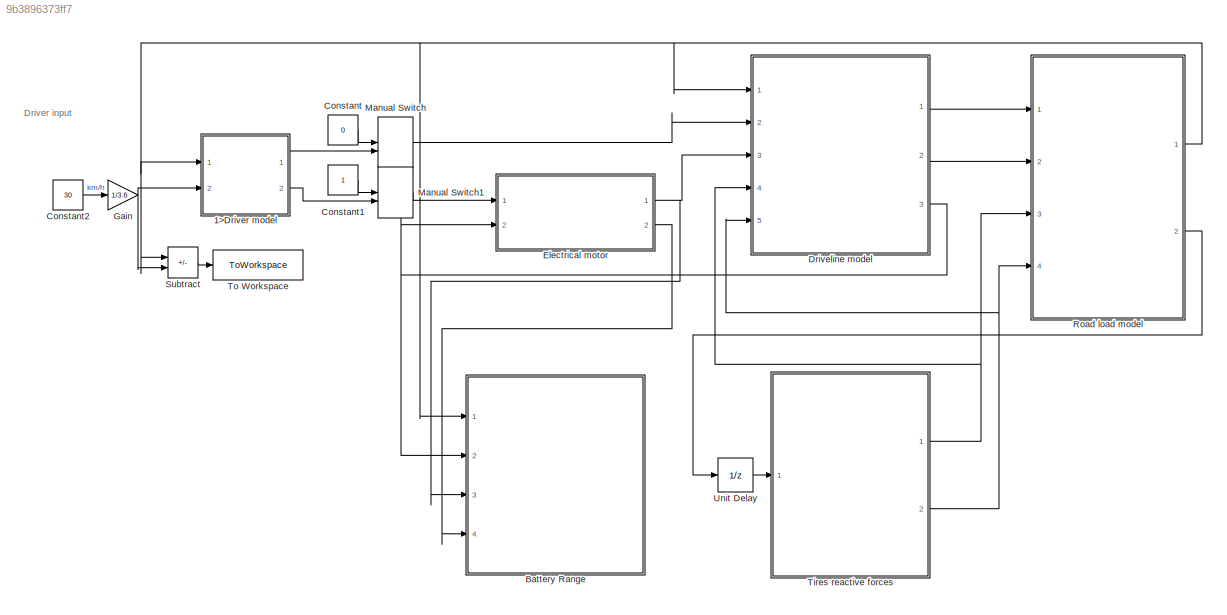
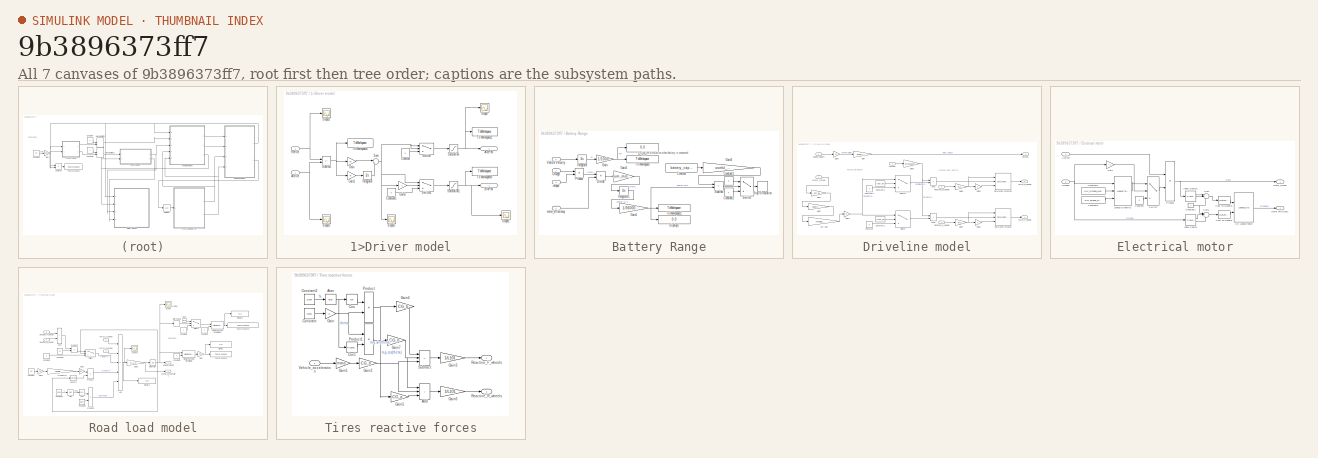
[diagram: thumbnail index - all 7 canvases of the model, root first then tree order]
MODEL slx_9b3896373ff7
KIND model
CONFIG AbsTol = auto
CONFIG EnableMultiTasking = off
CONFIG FixedStep = time_step
CONFIG MaxStep = auto
CONFIG MinStep = auto
CONFIG RelTol = 1e-3
CONFIG SampleTimeConstraint = Unconstrained
CONFIG Solver = FixedStepAuto
CONFIG SolverName = FixedStepAuto
CONFIG StartTime = 0
CONFIG StopTime = 1000
BLOCK [SubSystem] 1>Driver model
  Ports = [2, 2]
  RequestExecContextInheritance = off
BLOCK [Outport] 1>Driver model/AccPed
  Port = 2
BLOCK [Inport] 1>Driver model/ActVel
  Unit = m/s
BLOCK [Outport] 1>Driver model/BrkPed
BLOCK [Constant] 1>Driver model/Constant
  Value = 0
BLOCK [Constant] 1>Driver model/Constant1
  Value = 0
BLOCK [Gain] 1>Driver model/Gain
  Gain = Kp
BLOCK [Gain] 1>Driver model/Gain1
  Gain = Ki
BLOCK [Gain] 1>Driver model/Gain2
  Gain = -1
BLOCK [Integrator] 1>Driver model/Integrator
  Ports = [1, 1]
BLOCK [Inport] 1>Driver model/RefVel
  Port = 2
  Unit = m/s
BLOCK [Saturate] 1>Driver model/Saturation
  LowerLimit = 0
  UpperLimit = 1
BLOCK [Saturate] 1>Driver model/Saturation1
  LowerLimit = -1
  UpperLimit = 0
BLOCK [Scope] 1>Driver model/Scope
  Floating = off
  NumInputPorts = 1
  Ports = [1]
  ScopeSpecificationString = Simulink.scopes.TimeScopeBlockCfg('CurrentConfiguration', extmgr.ConfigurationSet(extmgr.Configuration('Core','General UI',true),extmgr.Configuration('Core','Source UI',true),extmgr.Configuration('Sources','WiredSimulink',true),extmgr.Configuration('Visuals','Time Domain',true,'SerializedDisplays',{struct('MinYLimReal','-0.0206','MaxYLimReal','0.1854','YLabelReal','','MinYLimMag','0.00000','MaxYLi...<+1355ch>
BLOCK [Scope] 1>Driver model/Scope1
  Floating = off
  NumInputPorts = 1
  Ports = [1]
  ScopeSpecificationString = Simulink.scopes.TimeScopeBlockCfg('CurrentConfiguration', extmgr.ConfigurationSet(extmgr.Configuration('Core','General UI',true),extmgr.Configuration('Core','Source UI',true),extmgr.Configuration('Sources','WiredSimulink',true,'DataLoggingVariableName','ScopeData1'),extmgr.Configuration('Visuals','Time Domain',true,'SerializedDisplays',{struct('MinYLimReal','-0.33615','MaxYLimReal','0.03735','YLab...<+1370ch>
BLOCK [Scope] 1>Driver model/Scope2
  Floating = off
  NumInputPorts = 1
  Ports = [1]
  ScopeSpecificationString = Simulink.scopes.TimeScopeBlockCfg('CurrentConfiguration', extmgr.ConfigurationSet(extmgr.Configuration('Core','General UI',true),extmgr.Configuration('Core','Source UI',true),extmgr.Configuration('Sources','WiredSimulink',true,'DataLoggingVariableName','ScopeData1'),extmgr.Configuration('Visuals','Time Domain',true,'SerializedDisplays',{struct('MinYLimReal','-4.46181','MaxYLimReal','40.15625','YLa...<+1404ch>
BLOCK [Scope] 1>Driver model/Scope3
  Floating = off
  NumInputPorts = 1
  Ports = [1]
  ScopeSpecificationString = Simulink.scopes.TimeScopeBlockCfg('CurrentConfiguration', extmgr.ConfigurationSet(extmgr.Configuration('Core','General UI',true),extmgr.Configuration('Core','Source UI',true),extmgr.Configuration('Sources','WiredSimulink',true,'DataLoggingVariableName','ScopeData2'),extmgr.Configuration('Visuals','Time Domain',true,'SerializedDisplays',{struct('MinYLimReal','-4.6429','MaxYLimReal','40.20167','YLab...<+1400ch>
BLOCK [Scope] 1>Driver model/Scope5
  Floating = off
  NumInputPorts = 1
  Ports = [1]
  ScopeSpecificationString = Simulink.scopes.TimeScopeBlockCfg('CurrentConfiguration', extmgr.ConfigurationSet(extmgr.Configuration('Core','General UI',true),extmgr.Configuration('Core','Source UI',true),extmgr.Configuration('Sources','WiredSimulink',true,'DataLoggingVariableName','ScopeData4'),extmgr.Configuration('Visuals','Time Domain',true,'SerializedDisplays',{struct('MinYLimReal','-0.35675','MaxYLimReal','0.22275','YLab...<+1391ch>
BLOCK [Sum] 1>Driver model/Subtract
  IconShape = rectangular
  Inputs = +-
  Ports = [2, 1]
BLOCK [Sum] 1>Driver model/Sum
  Inputs = |++
  Ports = [2, 1]
BLOCK [Switch] 1>Driver model/Switch
  InputSameDT = off
  SaturateOnIntegerOverflow = off
BLOCK [Switch] 1>Driver model/Switch1
  Criteria = u2 > Threshold
  InputSameDT = off
  SaturateOnIntegerOverflow = off
BLOCK [ToWorkspace] 1>Driver model/To Workspace1
  FixptAsFi = on
  MaxDataPoints = inf
  Ports = [1]
  SampleTime = -1
  SaveFormat = Timeseries
  VariableName = AccPed
BLOCK [ToWorkspace] 1>Driver model/To Workspace2
  FixptAsFi = on
  MaxDataPoints = inf
  Ports = [1]
  SampleTime = -1
  SaveFormat = Timeseries
  VariableName = error
BLOCK [ToWorkspace] 1>Driver model/To Workspace3
  FixptAsFi = on
  MaxDataPoints = inf
  Ports = [1]
  SampleTime = -1
  SaveFormat = Timeseries
  VariableName = BrkPed
BLOCK [SubSystem] Battery Range
  Ports = [4]
  RequestExecContextInheritance = off
BLOCK [Constant] Battery Range/Constant
  Value = battery_capacity/1000
BLOCK [Constant] Battery Range/Constant1
  Value = 0
BLOCK [Constant] Battery Range/Constant2
BLOCK [Display] Battery Range/Display
  Decimation = 1
  Ports = [1]
BLOCK [Display] Battery Range/Display1
  Decimation = 1
  Ports = [1]
BLOCK [Product] Battery Range/Divide
  Inputs = */
  Ports = [2, 1]
BLOCK [Gain] Battery Range/Gain
  Gain = 1/1000
BLOCK [Gain] Battery Range/Gain1
  Gain = 1/3600000
BLOCK [Gain] Battery Range/Gain2
  Gain = num_motor
BLOCK [Gain] Battery Range/Gain3
  Gain = useful_battery_capacity
BLOCK [Integrator] Battery Range/Integrator
  Ports = [1, 1]
BLOCK [Integrator] Battery Range/Integrator1
  Ports = [1, 1]
BLOCK [Inport] Battery Range/Omega
  Port = 2
BLOCK [Product] Battery Range/Product
  Ports = [2, 1]
BLOCK [Stop] Battery Range/Stop Simulation
BLOCK [Sum] Battery Range/Subtract
  IconShape = rectangular
  Inputs = +-
  Ports = [2, 1]
BLOCK [Switch] Battery Range/Switch
  Criteria = u2 > Threshold
  InputSameDT = off
  SaturateOnIntegerOverflow = off
BLOCK [ToWorkspace] Battery Range/To Workspace
  FixptAsFi = on
  MaxDataPoints = inf
  Ports = [1]
  SampleTime = -1
  SaveFormat = Timeseries
  VariableName = range_km
BLOCK [ToWorkspace] Battery Range/To Workspace1
  FixptAsFi = on
  MaxDataPoints = inf
  Ports = [1]
  SampleTime = -1
  SaveFormat = Timeseries
  VariableName = energy_consumed_kWh
BLOCK [Inport] Battery Range/Vehicle Velocity
BLOCK [Inport] Battery Range/motor_effieciency
  Port = 4
BLOCK [Inport] Battery Range/torque
  Port = 3
BLOCK [Constant] Constant
  Value = 0
BLOCK [Constant] Constant1
BLOCK [Constant] Constant2
  Value = 30
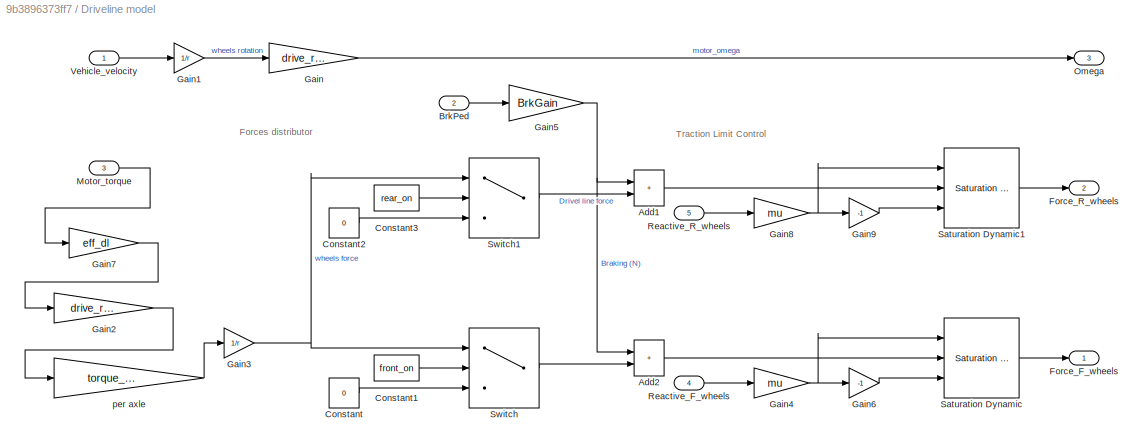
BLOCK [SubSystem] Driveline model
  Ports = [5, 3]
  RequestExecContextInheritance = off
BLOCK [Sum] Driveline model/Add1
  IconShape = rectangular
  Ports = [2, 1]
BLOCK [Sum] Driveline model/Add2
  IconShape = rectangular
  Ports = [2, 1]
BLOCK [Inport] Driveline model/BrkPed
  Port = 2
BLOCK [Constant] Driveline model/Constant
  Value = 0
BLOCK [Constant] Driveline model/Constant1
  Value = front_on
BLOCK [Constant] Driveline model/Constant2
  Value = 0
BLOCK [Constant] Driveline model/Constant3
  Value = rear_on
BLOCK [Outport] Driveline model/Force_F_wheels
  Unit = N
BLOCK [Outport] Driveline model/Force_R_wheels
  Port = 2
  Unit = N
BLOCK [Gain] Driveline model/Gain
  Gain = drive_ratio
BLOCK [Gain] Driveline model/Gain1
  Gain = 1/r
BLOCK [Gain] Driveline model/Gain2
  Gain = drive_ratio
BLOCK [Gain] Driveline model/Gain3
  Gain = 1/r
BLOCK [Gain] Driveline model/Gain4
  Gain = mu
BLOCK [Gain] Driveline model/Gain5
  Gain = BrkGain
BLOCK [Gain] Driveline model/Gain6
  Gain = -1
BLOCK [Gain] Driveline model/Gain7
  Gain = eff_dl
BLOCK [Gain] Driveline model/Gain8
  Gain = mu
BLOCK [Gain] Driveline model/Gain9
  Gain = -1
BLOCK [Inport] Driveline model/Motor_torque
  Port = 3
  Unit = N*m
BLOCK [Outport] Driveline model/Omega
  NameLocation = left
  Port = 3
  Unit = rad/s
BLOCK [Inport] Driveline model/Reactive_F_wheels
  Port = 4
  Unit = N
BLOCK [Inport] Driveline model/Reactive_R_wheels
  Port = 5
  Unit = N
BLOCK [Reference] Driveline model/Saturation Dynamic  REF=simulink/Discontinuities/Saturation
Dynamic
  Ports = [3, 1]
  SourceBlock = simulink/Discontinuities/Saturation\nDynamic
  SourceProductBaseCode = SL
  SourceType = Saturation Dynamic
BLOCK [Reference] Driveline model/Saturation Dynamic1  REF=simulink/Discontinuities/Saturation
Dynamic
  Ports = [3, 1]
  SourceBlock = simulink/Discontinuities/Saturation\nDynamic
  SourceProductBaseCode = SL
  SourceType = Saturation Dynamic
BLOCK [Switch] Driveline model/Switch
  Criteria = u2 ~= 0
  InputSameDT = off
  SaturateOnIntegerOverflow = off
BLOCK [Switch] Driveline model/Switch1
  Criteria = u2 ~= 0
  InputSameDT = off
  SaturateOnIntegerOverflow = off
BLOCK [Inport] Driveline model/Vehicle_velocity
  Unit = m/s
BLOCK [Gain] Driveline model/per axle
  Gain = torque_multi_factor
BLOCK [SubSystem] Electrical motor
  Ports = [2, 2]
  RequestExecContextInheritance = off
BLOCK [Lookup_n-D] Electrical motor/2-D Lookup Table
  BreakpointsForDimension1 = [1:torque_BP]
  BreakpointsForDimension2 = [1:omega_BP]
  BreakpointsSpecification = Even spacing
  ExtrapMethod = Clip
  InternalRulePriority = Speed
  Ports = [2, 1]
  RndMeth = Simplest
  Table = EM_Efficiency
  UseLastTableValue = on
BLOCK [Inport] Electrical motor/AccPed
BLOCK [DataTypeConversion] Electrical motor/Cast To Double
  OutDataTypeStr = double
  RndMeth = Floor
  SaturateOnIntegerOverflow = off
BLOCK [DataTypeConversion] Electrical motor/Cast To Double1
  OutDataTypeStr = double
  RndMeth = Floor
  SaturateOnIntegerOverflow = off
BLOCK [Constant] Electrical motor/Constant
  Value = 0
BLOCK [Constant] Electrical motor/Constant1
BLOCK [Constant] Electrical motor/Constant2
  Value = EM_Omega_Max
BLOCK [Constant] Electrical motor/Constant3
  Value = EM_Torque_Max
BLOCK [Gain] Electrical motor/Gain
  Gain = -1
BLOCK [PreLookup] Electrical motor/Index Search
  BreakpointDataTypeStr = double
  BreakpointsData = EM_Omega_Map
  IndexDataTypeStr = int8
  IndexSearchMethod = Linear search
  InputPortMap = u0
  Ports = [1, 2]
  RndMeth = Nearest
BLOCK [PreLookup] Electrical motor/Index Search1
  BreakpointDataTypeStr = double
  BreakpointsData = EM_Torque_Map
  IndexDataTypeStr = int8
  IndexSearchMethod = Linear search
  InputPortMap = u0
  Ports = [1, 2]
BLOCK [Reference] Electrical motor/Lookup Dynamics  REF=simulink/Lookup
Tables/Lookup
Table
Dynamic
  Ports = [3, 1]
  SourceBlock = simulink/Lookup\nTables/Lookup\nTable\nDynamic
  SourceProductBaseCode = SL
  SourceType = Lookup Table Dynamic
BLOCK [Inport] Electrical motor/Omega
  Port = 2
BLOCK [Product] Electrical motor/Product
  Ports = [2, 1]
BLOCK [Sum] Electrical motor/Sum
  Inputs = |+++
  Ports = [3, 1]
BLOCK [Sum] Electrical motor/Sum1
  Inputs = |+++
  Ports = [3, 1]
BLOCK [Switch] Electrical motor/Switch
  InputSameDT = off
  SaturateOnIntegerOverflow = off
  Threshold = -omega_max
BLOCK [Outport] Electrical motor/motor efficiency
  Port = 2
  Unit = N*m
BLOCK [Outport] Electrical motor/motor_torque
  Unit = N*m
BLOCK [Gain] Gain
  Gain = 1/3.6
BLOCK [ManualSwitch] Manual Switch
  CurrentSetting = 0
BLOCK [ManualSwitch] Manual Switch1
  CurrentSetting = 0
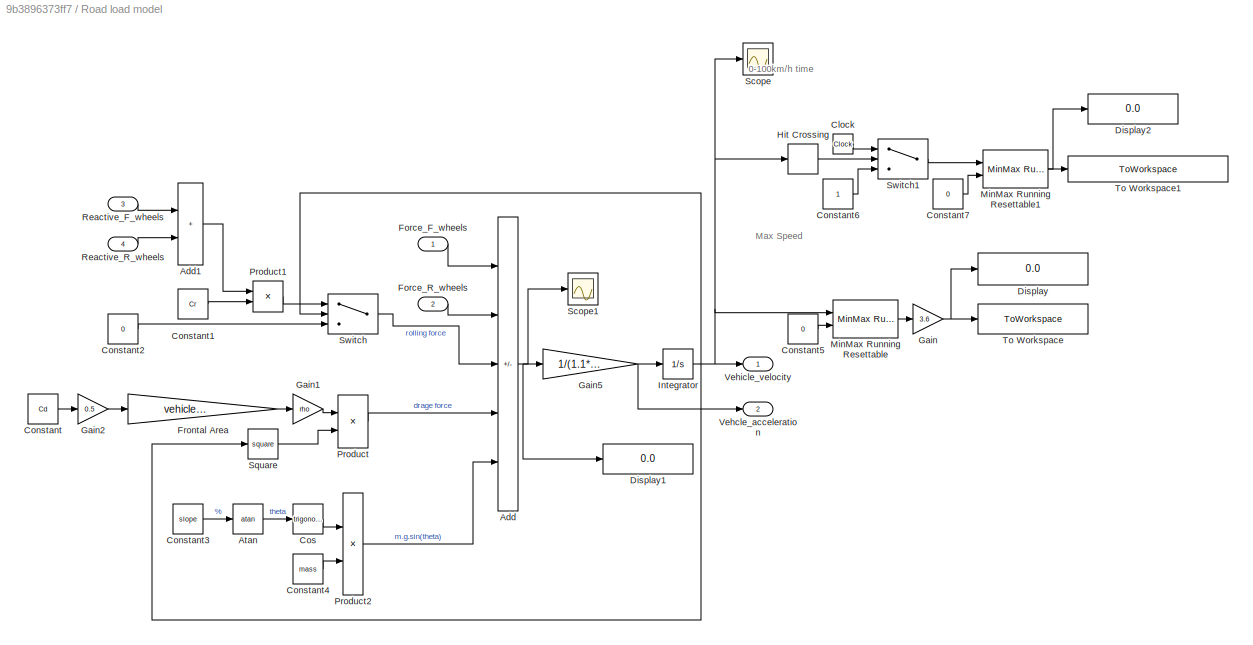
BLOCK [SubSystem] Road load model
  Ports = [4, 2]
  RequestExecContextInheritance = off
BLOCK [Sum] Road load model/Add
  IconShape = rectangular
  Inputs = ++---
  Ports = [5, 1]
BLOCK [Sum] Road load model/Add1
  IconShape = rectangular
  Ports = [2, 1]
BLOCK [Trigonometry] Road load model/Atan
  Operator = atan
  Ports = [1, 1]
BLOCK [Clock] Road load model/Clock
BLOCK [Constant] Road load model/Constant
  Value = Cd
BLOCK [Constant] Road load model/Constant1
  Value = Cr
BLOCK [Constant] Road load model/Constant2
  Value = 0
BLOCK [Constant] Road load model/Constant3
  Value = slope
BLOCK [Constant] Road load model/Constant4
  Value = mass
BLOCK [Constant] Road load model/Constant5
  Value = 0
BLOCK [Constant] Road load model/Constant6
BLOCK [Constant] Road load model/Constant7
  Value = 0
BLOCK [Trigonometry] Road load model/Cos
  Ports = [1, 1]
BLOCK [Display] Road load model/Display
  Decimation = 1
  Ports = [1]
BLOCK [Display] Road load model/Display1
  Decimation = 1
  Ports = [1]
BLOCK [Display] Road load model/Display2
  Decimation = 1
  Ports = [1]
BLOCK [Inport] Road load model/Force_F_wheels
  Unit = N
BLOCK [Inport] Road load model/Force_R_wheels
  Port = 2
  Unit = N
BLOCK [Gain] Road load model/Frontal Area
  Gain = vehicle_frontal_area
BLOCK [Gain] Road load model/Gain
  Gain = 3.6
BLOCK [Gain] Road load model/Gain1
  Gain = rho
BLOCK [Gain] Road load model/Gain2
  Gain = 0.5
BLOCK [Gain] Road load model/Gain5
  Gain = 1/(1.1*mass)
BLOCK [HitCross] Road load model/Hit Crossing
  HitCrossingDirection = rising
  HitCrossingOffset = 100/3.6
  Ports = [1, 1]
BLOCK [Integrator] Road load model/Integrator
  LimitOutput = on
  LowerSaturationLimit = 0
  Ports = [1, 1]
BLOCK [Reference] Road load model/MinMax Running Resettable  REF=simulink/Math
Operations/MinMax
Running
Resettable
  Ports = [2, 1]
  SourceBlock = simulink/Math\nOperations/MinMax\nRunning\nResettable
  SourceProductBaseCode = SL
  SourceType = MinMax Running Resettable
BLOCK [Reference] Road load model/MinMax Running Resettable1  REF=simulink/Math
Operations/MinMax
Running
Resettable
  Ports = [2, 1]
  SourceBlock = simulink/Math\nOperations/MinMax\nRunning\nResettable
  SourceProductBaseCode = SL
  SourceType = MinMax Running Resettable
BLOCK [Product] Road load model/Product
  Ports = [2, 1]
BLOCK [Product] Road load model/Product1
  Ports = [2, 1]
BLOCK [Product] Road load model/Product2
  Ports = [2, 1]
BLOCK [Inport] Road load model/Reactive_F_wheels
  Port = 3
  Unit = N
BLOCK [Inport] Road load model/Reactive_R_wheels
  Port = 4
  Unit = N
BLOCK [Scope] Road load model/Scope
  Floating = off
  NumInputPorts = 1
  Ports = [1]
  ScopeSpecificationString = Simulink.scopes.TimeScopeBlockCfg('CurrentConfiguration', extmgr.ConfigurationSet(extmgr.Configuration('Core','General UI',true),extmgr.Configuration('Core','Source UI',true),extmgr.Configuration('Sources','WiredSimulink',true,'DataLoggingVariableName','ScopeData9'),extmgr.Configuration('Visuals','Time Domain',true,'SerializedDisplays',{struct('MinYLimReal','5.51796','MaxYLimReal','11.55208','YLab...<+1438ch>
BLOCK [Scope] Road load model/Scope1
  Floating = off
  NumInputPorts = 1
  Ports = [1]
  ScopeSpecificationString = Simulink.scopes.TimeScopeBlockCfg('CurrentConfiguration', extmgr.ConfigurationSet(extmgr.Configuration('Core','General UI',true),extmgr.Configuration('Core','Source UI',true),extmgr.Configuration('Sources','WiredSimulink',true,'DataLoggingVariableName','ScopeData3'),extmgr.Configuration('Visuals','Time Domain',true,'SerializedDisplays',{struct('MinYLimReal','25.68692','MaxYLimReal','43.26504','YLa...<+1441ch>
BLOCK [Math] Road load model/Square
  Operator = square
  Ports = [1, 1]
BLOCK [Switch] Road load model/Switch
  Criteria = u2 > Threshold
  InputSameDT = off
  SaturateOnIntegerOverflow = off
BLOCK [Switch] Road load model/Switch1
  Criteria = u2 > Threshold
  InputSameDT = off
  SaturateOnIntegerOverflow = off
BLOCK [ToWorkspace] Road load model/To Workspace
  FixptAsFi = on
  MaxDataPoints = inf
  Ports = [1]
  SampleTime = -1
  SaveFormat = Timeseries
  VariableName = max_velocity_km_per_h
BLOCK [ToWorkspace] Road load model/To Workspace1
  FixptAsFi = on
  MaxDataPoints = inf
  Ports = [1]
  SampleTime = -1
  SaveFormat = Timeseries
  VariableName = acceleration_time_to_hundred_kmh
BLOCK [Outport] Road load model/Vehcle_acceleration
  Port = 2
  Unit = m/s
BLOCK [Outport] Road load model/Vehicle_velocity
  Unit = m/s
BLOCK [Sum] Subtract
  IconShape = rectangular
  Inputs = +-
  Ports = [2, 1]
BLOCK [SubSystem] Tires reactive forces
  Ports = [1, 2]
  RequestExecContextInheritance = off
  TreatAsAtomicUnit = on
BLOCK [Sum] Tires reactive forces/Add
  IconShape = rectangular
  Inputs = +++
  Ports = [3, 1]
BLOCK [Trigonometry] Tires reactive forces/Atan
  Operator = atan
  Ports = [1, 1]
BLOCK [Constant] Tires reactive forces/Constant
  Value = mass
BLOCK [Constant] Tires reactive forces/Constant2
  Value = slope
BLOCK [Trigonometry] Tires reactive forces/Cos
  Operator = cos
  Ports = [1, 1]
BLOCK [Trigonometry] Tires reactive forces/Cos1
  Ports = [1, 1]
BLOCK [Gain] Tires reactive forces/Gain
  Gain = g
BLOCK [Gain] Tires reactive forces/Gain1
  Gain = mass
BLOCK [Gain] Tires reactive forces/Gain2
  Gain = CG_h
BLOCK [Gain] Tires reactive forces/Gain3
  Gain = 1/L101
BLOCK [Gain] Tires reactive forces/Gain4
  Gain = CG_b
BLOCK [Gain] Tires reactive forces/Gain5
  Gain = CG_a
BLOCK [Gain] Tires reactive forces/Gain6
  Gain = 1/L101
BLOCK [Gain] Tires reactive forces/Gain7
  Gain = CG_h
BLOCK [Product] Tires reactive forces/Product
  Ports = [2, 1]
BLOCK [Product] Tires reactive forces/Product1
  Ports = [2, 1]
BLOCK [Outport] Tires reactive forces/Reactive_F_wheels
BLOCK [Outport] Tires reactive forces/Reactive_R_wheels
  Port = 2
BLOCK [Sum] Tires reactive forces/Subtract
  IconShape = rectangular
  Inputs = +--
  Ports = [3, 1]
BLOCK [Inport] Tires reactive forces/Vehicle_acceleration
BLOCK [ToWorkspace] To Workspace
  FixptAsFi = on
  MaxDataPoints = inf
  Ports = [1]
  SampleTime = -1
  SaveFormat = Timeseries
  VariableName = slope_error
BLOCK [UnitDelay] Unit Delay
  HasFrameUpgradeWarning = on
  SampleTime = -1
ANNOTATION (root): Driver input
ANNOTATION Battery Range: Stop the simulation when battery is consumed
ANNOTATION Driveline model: Forces distributor
ANNOTATION Driveline model: Traction Limit Control
ANNOTATION Road load model: 0-100km/h time
ANNOTATION Road load model: Max Speed
NET 1>Driver model/ActVel:1 -> 1>Driver model/Scope3:1, 1>Driver model/Subtract:2
LINE 1>Driver model/Constant1:1 -> 1>Driver model/Switch1:3
LINE 1>Driver model/Constant:1 -> 1>Driver model/Switch:3
LINE 1>Driver model/Gain1:1 -> 1>Driver model/Integrator:1
LINE 1>Driver model/Gain2:1 -> 1>Driver model/Switch1:2
LINE 1>Driver model/Gain:1 -> 1>Driver model/Sum:1
LINE 1>Driver model/Integrator:1 -> 1>Driver model/Sum:2
NET 1>Driver model/RefVel:1 -> 1>Driver model/Scope2:1, 1>Driver model/Subtract:1
NET 1>Driver model/Saturation1:1 -> 1>Driver model/BrkPed:1, 1>Driver model/Scope1:1, 1>Driver model/To Workspace3:1
NET 1>Driver model/Saturation:1 -> 1>Driver model/AccPed:1, 1>Driver model/Scope:1, 1>Driver model/To Workspace1:1
NET 1>Driver model/Subtract:1 -> 1>Driver model/Gain1:1, 1>Driver model/Gain:1, 1>Driver model/To Workspace2:1
NET 1>Driver model/Sum:1 -> 1>Driver model/Gain2:1, 1>Driver model/Scope5:1, 1>Driver model/Switch1:1, 1>Driver model/Switch:1, 1>Driver model/Switch:2
LINE 1>Driver model/Switch1:1 -> 1>Driver model/Saturation1:1
LINE 1>Driver model/Switch:1 -> 1>Driver model/Saturation:1
LINE 1>Driver model:1 -> Manual Switch:2
LINE 1>Driver model:2 -> Manual Switch1:2
LINE Battery Range/Constant1:1 -> Battery Range/Switch:1
LINE Battery Range/Constant2:1 -> Battery Range/Switch:3
LINE Battery Range/Constant:1 -> Battery Range/Gain3:1
LINE Battery Range/Divide:1 -> Battery Range/Gain2:1
NET Battery Range/Gain1:1 -> Battery Range/Display1:1, Battery Range/Subtract:2, Battery Range/To Workspace1:1
LINE Battery Range/Gain2:1 -> Battery Range/Integrator1:1
LINE Battery Range/Gain3:1 -> Battery Range/Subtract:1
NET Battery Range/Gain:1 -> Battery Range/Display:1, Battery Range/To Workspace:1
LINE Battery Range/Integrator1:1 -> Battery Range/Gain1:1
LINE Battery Range/Integrator:1 -> Battery Range/Gain:1
LINE Battery Range/Omega:1 -> Battery Range/Product:1
LINE Battery Range/Product:1 -> Battery Range/Divide:1
LINE Battery Range/Subtract:1 -> Battery Range/Switch:2
LINE Battery Range/Switch:1 -> Battery Range/Stop Simulation:1
LINE Battery Range/Vehicle Velocity:1 -> Battery Range/Integrator:1
LINE Battery Range/motor_effieciency:1 -> Battery Range/Divide:2
LINE Battery Range/torque:1 -> Battery Range/Product:2
LINE Constant1:1 -> Manual Switch1:1
LINE Constant2:1 -> Gain:1
LINE Constant:1 -> Manual Switch:1
LINE Driveline model/Add1:1 -> Driveline model/Saturation Dynamic1:2
LINE Driveline model/Add2:1 -> Driveline model/Saturation Dynamic:2
LINE Driveline model/BrkPed:1 -> Driveline model/Gain5:1
LINE Driveline model/Constant1:1 -> Driveline model/Switch:2
LINE Driveline model/Constant2:1 -> Driveline model/Switch1:3
LINE Driveline model/Constant3:1 -> Driveline model/Switch1:2
LINE Driveline model/Constant:1 -> Driveline model/Switch:3
LINE Driveline model/Gain1:1 -> Driveline model/Gain:1
LINE Driveline model/Gain2:1 -> Driveline model/per axle:1
NET Driveline model/Gain3:1 -> Driveline model/Switch1:1, Driveline model/Switch:1
NET Driveline model/Gain4:1 -> Driveline model/Gain6:1, Driveline model/Saturation Dynamic:1
NET Driveline model/Gain5:1 -> Driveline model/Add1:1, Driveline model/Add2:1
LINE Driveline model/Gain6:1 -> Driveline model/Saturation Dynamic:3
LINE Driveline model/Gain7:1 -> Driveline model/Gain2:1
NET Driveline model/Gain8:1 -> Driveline model/Gain9:1, Driveline model/Saturation Dynamic1:1
LINE Driveline model/Gain9:1 -> Driveline model/Saturation Dynamic1:3
LINE Driveline model/Gain:1 -> Driveline model/Omega:1
LINE Driveline model/Motor_torque:1 -> Driveline model/Gain7:1
LINE Driveline model/Reactive_F_wheels:1 -> Driveline model/Gain4:1
LINE Driveline model/Reactive_R_wheels:1 -> Driveline model/Gain8:1
LINE Driveline model/Saturation Dynamic1:1 -> Driveline model/Force_R_wheels:1
LINE Driveline model/Saturation Dynamic:1 -> Driveline model/Force_F_wheels:1
LINE Driveline model/Switch1:1 -> Driveline model/Add1:2
LINE Driveline model/Switch:1 -> Driveline model/Add2:2
LINE Driveline model/Vehicle_velocity:1 -> Driveline model/Gain1:1
LINE Driveline model/per axle:1 -> Driveline model/Gain3:1
LINE Driveline model:1 -> Road load model:1
LINE Driveline model:2 -> Road load model:2
NET Driveline model:3 -> Battery Range:2, Electrical motor:2
LINE Electrical motor/2-D Lookup Table:1 -> Electrical motor/motor efficiency:1
LINE Electrical motor/AccPed:1 -> Electrical motor/Product:1
LINE Electrical motor/Cast To Double1:1 -> Electrical motor/2-D Lookup Table:1
LINE Electrical motor/Cast To Double:1 -> Electrical motor/2-D Lookup Table:2
NET Electrical motor/Constant1:1 -> Electrical motor/Sum1:1, Electrical motor/Sum:3
LINE Electrical motor/Constant2:1 -> Electrical motor/Lookup Dynamics:2
LINE Electrical motor/Constant3:1 -> Electrical motor/Lookup Dynamics:3
LINE Electrical motor/Constant:1 -> Electrical motor/Switch:3
LINE Electrical motor/Gain:1 -> Electrical motor/Switch:2
LINE Electrical motor/Index Search1:1 -> Electrical motor/Sum:1
LINE Electrical motor/Index Search1:2 -> Electrical motor/Sum:2
LINE Electrical motor/Index Search:1 -> Electrical motor/Sum1:2
LINE Electrical motor/Index Search:2 -> Electrical motor/Sum1:3
LINE Electrical motor/Lookup Dynamics:1 -> Electrical motor/Switch:1
NET Electrical motor/Omega:1 -> Electrical motor/Gain:1, Electrical motor/Index Search:1, Electrical motor/Lookup Dynamics:1
NET Electrical motor/Product:1 -> Electrical motor/Index Search1:1, Electrical motor/motor_torque:1
LINE Electrical motor/Sum1:1 -> Electrical motor/Cast To Double:1
LINE Electrical motor/Sum:1 -> Electrical motor/Cast To Double1:1
LINE Electrical motor/Switch:1 -> Electrical motor/Product:2
NET Electrical motor:1 -> Battery Range:3, Driveline model:3
LINE Electrical motor:2 -> Battery Range:4
NET Gain:1 -> 1>Driver model:2, Subtract:2
LINE Manual Switch1:1 -> Electrical motor:1
LINE Manual Switch:1 -> Driveline model:2
LINE Road load model/Add1:1 -> Road load model/Product1:1
NET Road load model/Add:1 -> Road load model/Display1:1, Road load model/Gain5:1, Road load model/Scope1:1
LINE Road load model/Atan:1 -> Road load model/Cos:1
LINE Road load model/Clock:1 -> Road load model/Switch1:1
LINE Road load model/Constant1:1 -> Road load model/Product1:2
LINE Road load model/Constant2:1 -> Road load model/Switch:3
LINE Road load model/Constant3:1 -> Road load model/Atan:1
LINE Road load model/Constant4:1 -> Road load model/Product2:2
LINE Road load model/Constant5:1 -> Road load model/MinMax Running Resettable:2
LINE Road load model/Constant6:1 -> Road load model/Switch1:3
LINE Road load model/Constant7:1 -> Road load model/MinMax Running Resettable1:2
LINE Road load model/Constant:1 -> Road load model/Gain2:1
LINE Road load model/Cos:1 -> Road load model/Product2:1
LINE Road load model/Force_F_wheels:1 -> Road load model/Add:1
LINE Road load model/Force_R_wheels:1 -> Road load model/Add:2
LINE Road load model/Frontal Area:1 -> Road load model/Gain1:1
LINE Road load model/Gain1:1 -> Road load model/Product:1
LINE Road load model/Gain2:1 -> Road load model/Frontal Area:1
NET Road load model/Gain5:1 -> Road load model/Integrator:1, Road load model/Vehcle_acceleration:1
NET Road load model/Gain:1 -> Road load model/Display:1, Road load model/To Workspace:1
LINE Road load model/Hit Crossing:1 -> Road load model/Switch1:2
NET Road load model/Integrator:1 -> Road load model/Hit Crossing:1, Road load model/MinMax Running Resettable:1, Road load model/Scope:1, Road load model/Square:1, Road load model/Switch:2, Road load model/Vehicle_velocity:1
NET Road load model/MinMax Running Resettable1:1 -> Road load model/Display2:1, Road load model/To Workspace1:1
LINE Road load model/MinMax Running Resettable:1 -> Road load model/Gain:1
LINE Road load model/Product1:1 -> Road load model/Switch:1
LINE Road load model/Product2:1 -> Road load model/Add:5
LINE Road load model/Product:1 -> Road load model/Add:4
LINE Road load model/Reactive_F_wheels:1 -> Road load model/Add1:1
LINE Road load model/Reactive_R_wheels:1 -> Road load model/Add1:2
LINE Road load model/Square:1 -> Road load model/Product:2
LINE Road load model/Switch1:1 -> Road load model/MinMax Running Resettable1:1
LINE Road load model/Switch:1 -> Road load model/Add:3
NET Road load model:1 -> 1>Driver model:1, Battery Range:1, Driveline model:1, Subtract:1
LINE Road load model:2 -> Unit Delay:1
LINE Subtract:1 -> To Workspace:1
LINE Tires reactive forces/Add:1 -> Tires reactive forces/Gain6:1
NET Tires reactive forces/Atan:1 -> Tires reactive forces/Cos1:1, Tires reactive forces/Cos:1
LINE Tires reactive forces/Constant2:1 -> Tires reactive forces/Atan:1
LINE Tires reactive forces/Constant:1 -> Tires reactive forces/Gain:1
LINE Tires reactive forces/Cos1:1 -> Tires reactive forces/Product1:2
LINE Tires reactive forces/Cos:1 -> Tires reactive forces/Product:1
LINE Tires reactive forces/Gain1:1 -> Tires reactive forces/Gain2:1
NET Tires reactive forces/Gain2:1 -> Tires reactive forces/Add:2, Tires reactive forces/Subtract:3
LINE Tires reactive forces/Gain3:1 -> Tires reactive forces/Reactive_F_wheels:1
LINE Tires reactive forces/Gain4:1 -> Tires reactive forces/Subtract:1
LINE Tires reactive forces/Gain5:1 -> Tires reactive forces/Add:3
LINE Tires reactive forces/Gain6:1 -> Tires reactive forces/Reactive_R_wheels:1
NET Tires reactive forces/Gain7:1 -> Tires reactive forces/Add:1, Tires reactive forces/Subtract:2
NET Tires reactive forces/Gain:1 -> Tires reactive forces/Product1:1, Tires reactive forces/Product:2
LINE Tires reactive forces/Product1:1 -> Tires reactive forces/Gain7:1
NET Tires reactive forces/Product:1 -> Tires reactive forces/Gain4:1, Tires reactive forces/Gain5:1
LINE Tires reactive forces/Subtract:1 -> Tires reactive forces/Gain3:1
LINE Tires reactive forces/Vehicle_acceleration:1 -> Tires reactive forces/Gain1:1
NET Tires reactive forces:1 -> Driveline model:4, Road load model:3
NET Tires reactive forces:2 -> Driveline model:5, Road load model:4
LINE Unit Delay:1 -> Tires reactive forces:1
note: NET lines group one-source signal fan-out (src -> all destinations, sorted); 1:1 wires keep LINE
